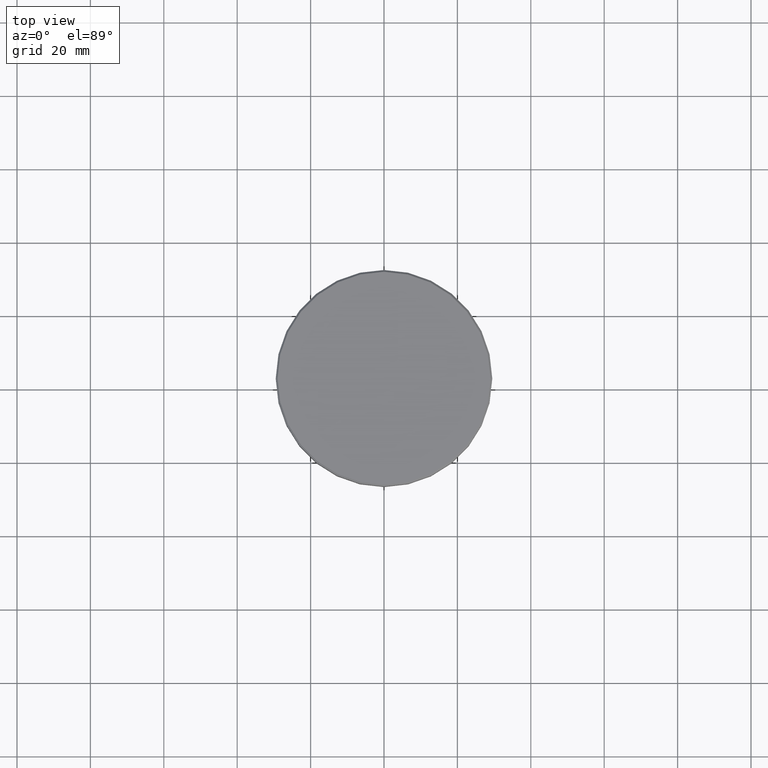
[diagram: clean part render]
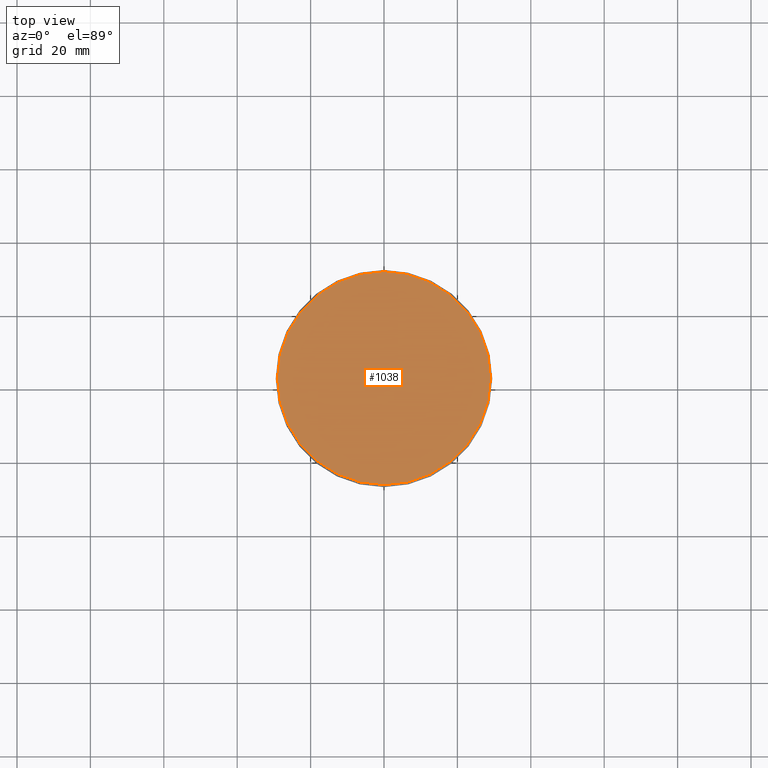
[diagram: same view with one face highlighted and labeled with its STEP entity id]
A machine part, top view. The second image highlights one B-rep face of the part: STEP entity #1038.
In plain terms, the highlighted planar face has unit normal (0, -0, 1).
Its self-contained STEP definition (entity closure, byte-faithful):
#166 = DIRECTION ( 'NONE',  ( 1.000000000000000000, 0.000000000000000000, 0.000000000000000000 ) ) ;
#183 = DIRECTION ( 'NONE',  ( -0.000000000000000000, -0.000000000000000000, 1.000000000000000000 ) ) ;
#214 = VERTEX_POINT ( 'NONE', #913 ) ;
#216 = CIRCLE ( 'NONE', #604, 28.99999999999999645 ) ;
#251 = DIRECTION ( 'NONE',  ( 1.000000000000000000, 0.000000000000000000, 0.000000000000000000 ) ) ;
#428 = CARTESIAN_POINT ( 'NONE',  ( 0.000000000000000000, 0.000000000000000000, 0.000000000000000000 ) ) ;
#534 = CARTESIAN_POINT ( 'NONE',  ( 0.000000000000000000, 0.000000000000000000, 0.000000000000000000 ) ) ;
#544 = AXIS2_PLACEMENT_3D ( 'NONE', #428, #1150, #251 ) ;
#565 = CARTESIAN_POINT ( 'NONE',  ( 0.000000000000000000, 0.000000000000000000, 0.000000000000000000 ) ) ;
#570 = VERTEX_POINT ( 'NONE', #870 ) ;
#579 = EDGE_CURVE ( 'NONE', #214, #570, #216, .T. ) ;
#589 = PLANE ( 'NONE',  #544 ) ;
#604 = AXIS2_PLACEMENT_3D ( 'NONE', #565, #891, #166 ) ;
#775 = ORIENTED_EDGE ( 'NONE', *, *, #579, .T. ) ;
#802 = AXIS2_PLACEMENT_3D ( 'NONE', #534, #183, #1107 ) ;
#867 = EDGE_CURVE ( 'NONE', #570, #214, #1007, .T. ) ;
#870 = CARTESIAN_POINT ( 'NONE',  ( 28.99999999999999645, 3.582091887506007817E-15, 0.000000000000000000 ) ) ;
#891 = DIRECTION ( 'NONE',  ( -0.000000000000000000, -0.000000000000000000, 1.000000000000000000 ) ) ;
#913 = CARTESIAN_POINT ( 'NONE',  ( -28.99999999999999645, 0.000000000000000000, 0.000000000000000000 ) ) ;
#916 = EDGE_LOOP ( 'NONE', ( #775, #1177 ) ) ;
#1007 = CIRCLE ( 'NONE', #802, 28.99999999999999645 ) ;
#1038 = ADVANCED_FACE ( 'NONE', ( #1040 ), #589, .T. ) ;
#1040 = FACE_OUTER_BOUND ( 'NONE', #916, .T. ) ;
#1107 = DIRECTION ( 'NONE',  ( 1.000000000000000000, 0.000000000000000000, 0.000000000000000000 ) ) ;
#1150 = DIRECTION ( 'NONE',  ( 0.000000000000000000, -0.000000000000000000, 1.000000000000000000 ) ) ;
#1177 = ORIENTED_EDGE ( 'NONE', *, *, #867, .T. ) ;